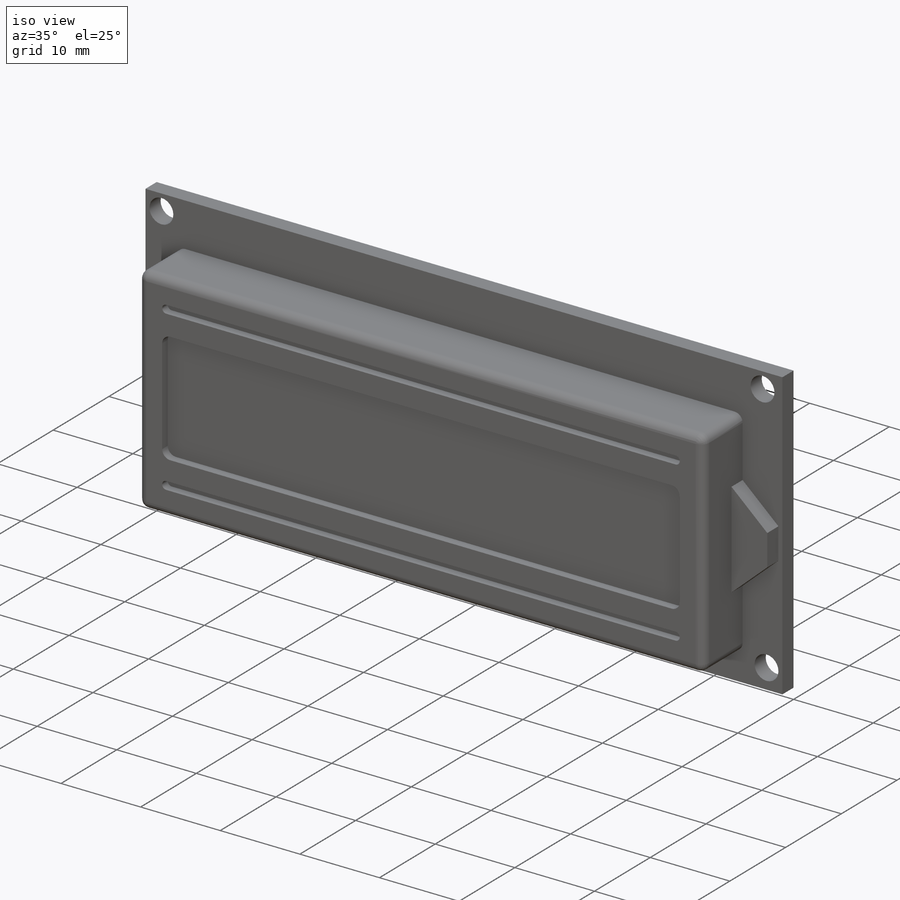
[diagram: iso view]
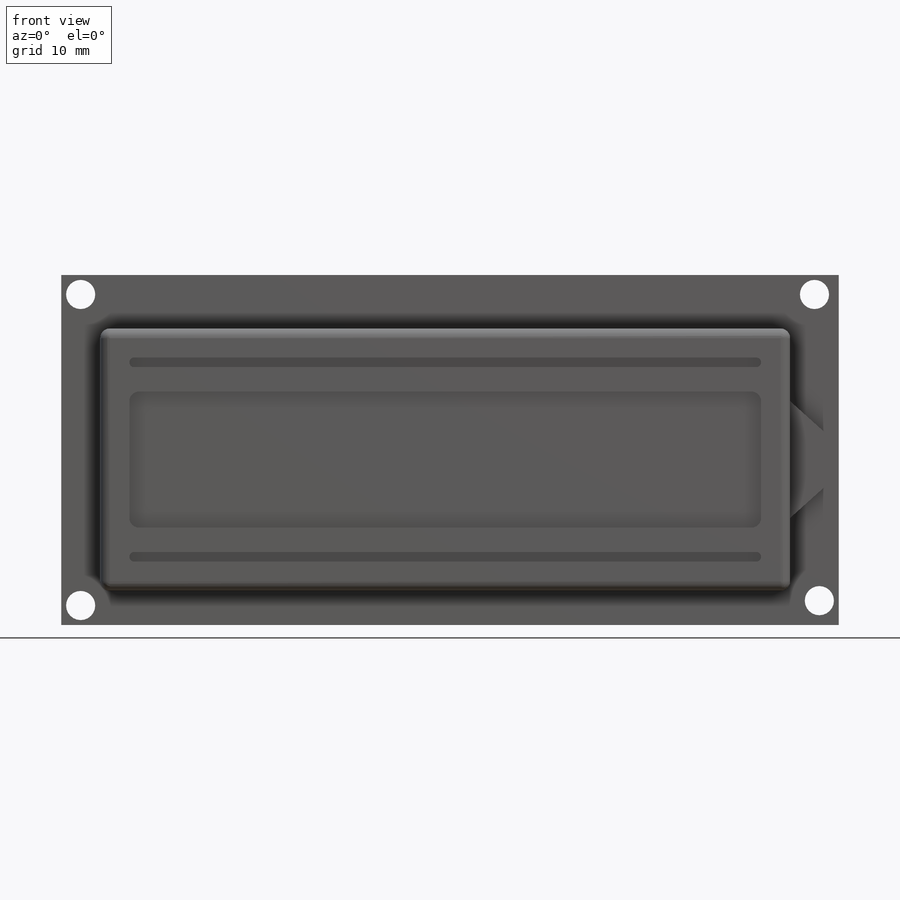
[diagram: front view]
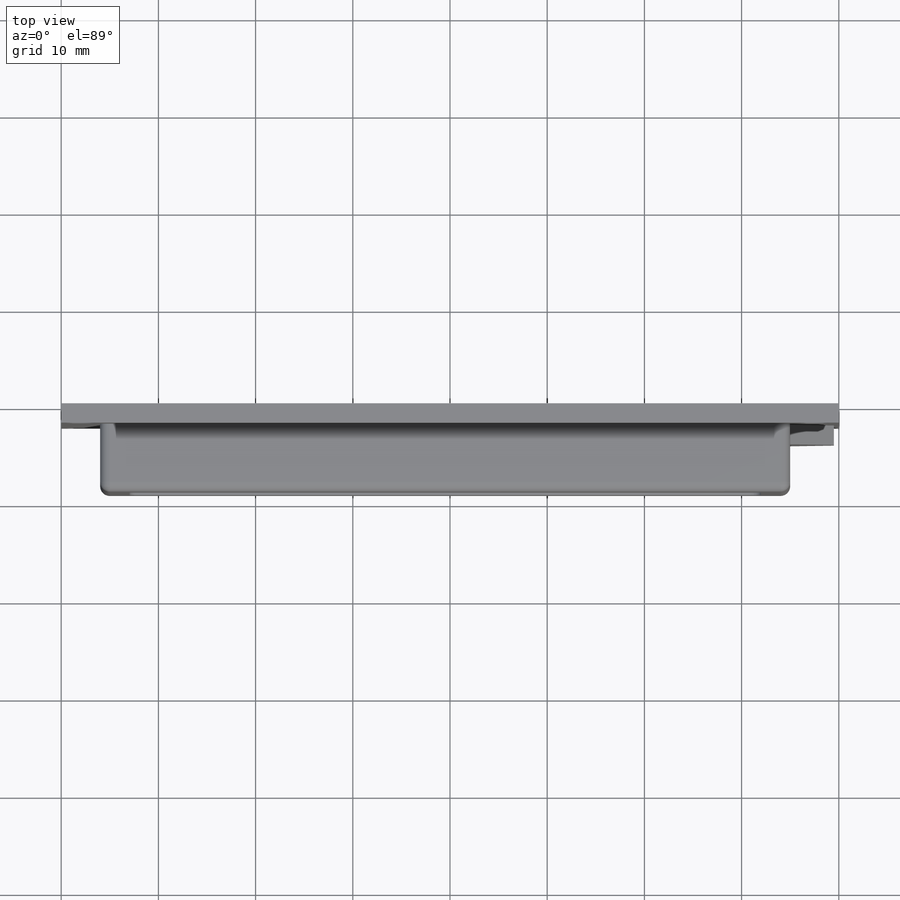
[diagram: top view]
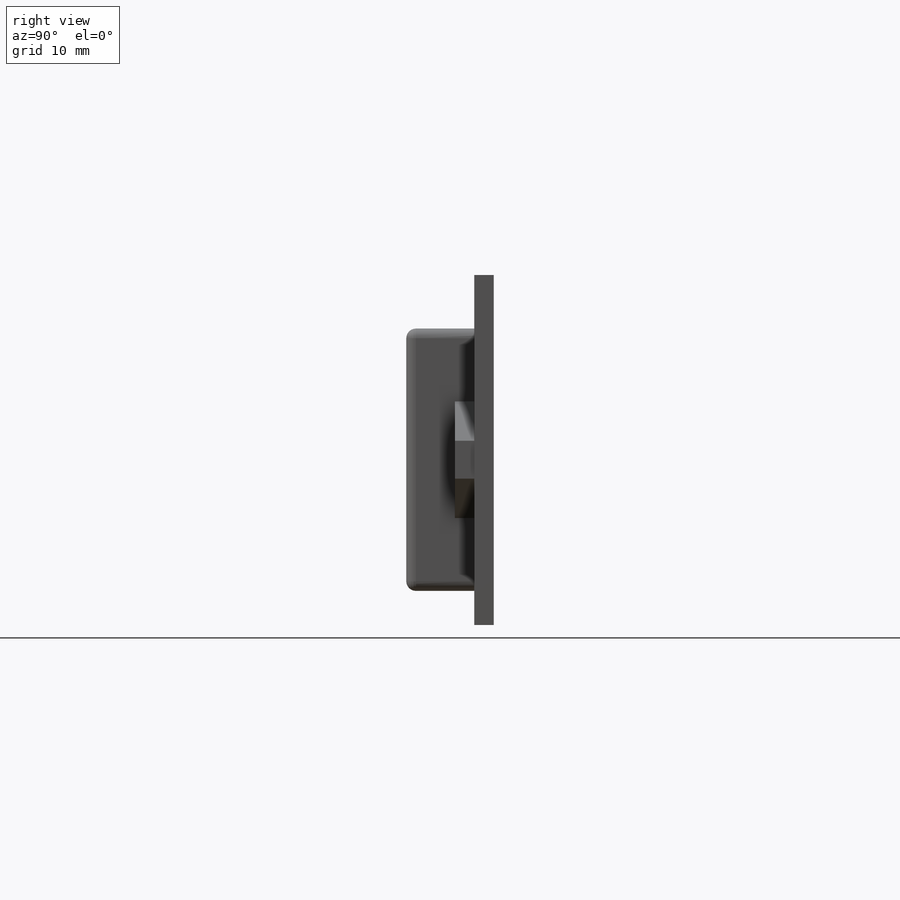
[diagram: right view]
SOLIDWORKS PART (.sldprt)
format: sldprt  version: not decoded by parser v0  size: 496,128 bytes
history: native  units: mm
features: fillet x16, sketch x8, cut_extrude x5, extrude x3, material x1 (+11 scaffold rows collapsed)
feature tree (44):
  scaffold x11  (default folders/planes/origin — collapsed)
  material  "Material <not specified>"
  sketch  "Sketch1"  dims[D1=80.0mm D2=36.0mm]
  extrude  "Boss-Extrude1"  Depth=2mm
  sketch  "Sketch2"  dims[D1=3.0mm D2=5.0mm D3=4.0mm D4=5.0mm]
  extrude  "Boss-Extrude3"  Depth=7mm
  sketch  "Sketch7"  dims[D1=6.0mm D2=6.0mm D3=1.5mm D4=1.5mm]
  extrude  "Boss-Extrude4"  Depth=2mm
  sketch  "Sketch8"  dims[D1=7.0mm D2=7.0mm D3=3.0mm D4=3.0mm]
  cut_extrude  "Cut-Extrude5"  Depth=1mm
  sketch  "Sketch9"  dims[D1=3.0mm D2=3.0mm D3=3.0mm D4=1.0mm]
  cut_extrude  "Cut-Extrude6"  Depth=1mm
  sketch  "Sketch10"  dims[D1=3.0mm D2=1.0mm]
  cut_extrude  "Cut-Extrude7"  Depth=1mm
  fillet  "Fillet3"  Radius=1mm
  fillet  "Fillet4"  Radius=1mm
  fillet  "Fillet5"  Radius=1mm
  fillet  "Fillet6"  Radius=1mm
  fillet  "Fillet7"  Radius=1mm
  fillet  "Fillet8"  Radius=1mm
  fillet  "Fillet9"  Radius=1mm
  fillet  "Fillet10"  Radius=1mm
  fillet  "Fillet13"  Radius=0.5mm
  fillet  "Fillet14"  Radius=0.5mm
  fillet  "Fillet15"  Radius=0.5mm
  fillet  "Fillet16"  Radius=0.5mm
  fillet  "Fillet17"  Radius=0.5mm
  fillet  "Fillet18"  Radius=0.5mm
  fillet  "Fillet19"  Radius=0.5mm
  fillet  "Fillet22"  Radius=0.5mm
  sketch  "Sketch11"  dims[D1=0.5mm]
  cut_extrude  "Cut-Extrude8"  [1 undecoded]
  sketch  "Sketch12"  dims[c1.D3=~1.875175mm c1.D5=~0.500031mm c1.D7=~0.849742mm c1.D9=0.5mm c1.D1=2.0mm c1.D2=2.0mm c2.D3=2.0mm c2.D4=2.0mm c2.D5=2.5mm c2.D6=2.0mm c2.D7=2.0mm c2.D8=2.5mm]
  cut_extrude  "Cut-Extrude9"  [1 undecoded]
decode coverage: 30 of 32 modeling features carry decoded parameters
note: ~ marks probable driven/reference dimensions
note: 2 parameter values undecoded
note: suppression state not decoded; provenance and decode notes live in map.json
